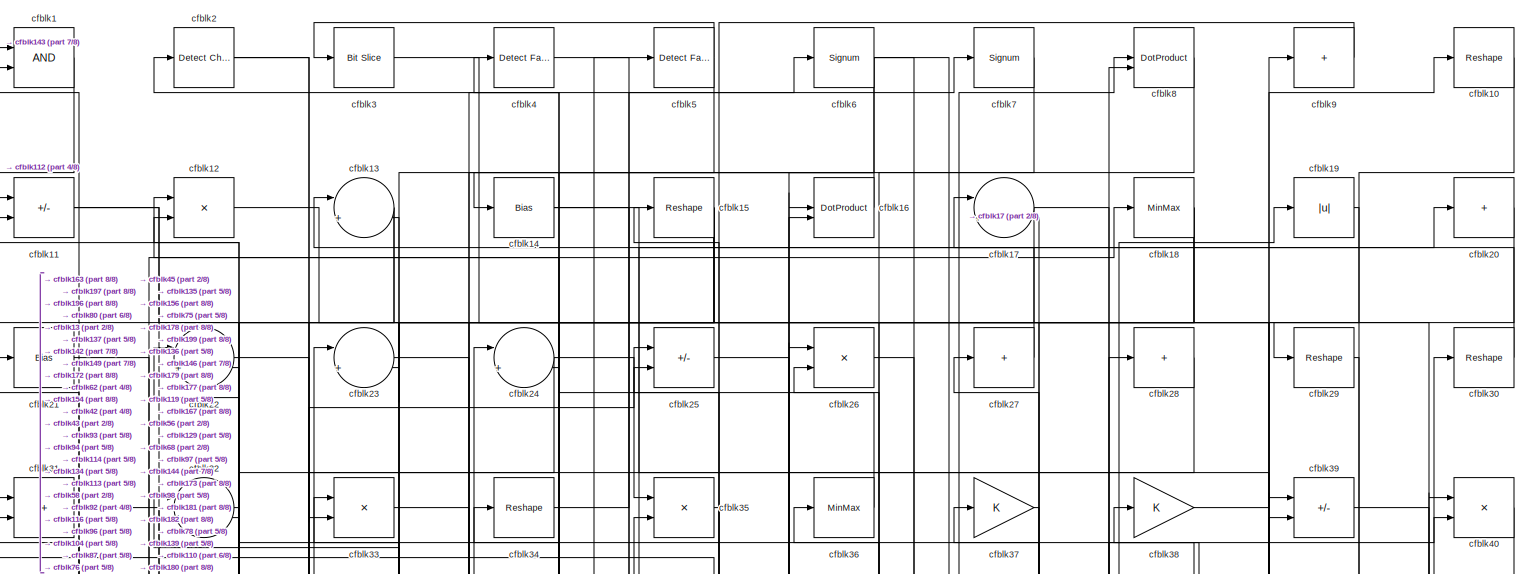
[diagram: root canvas - part 1/8, full width, top band]
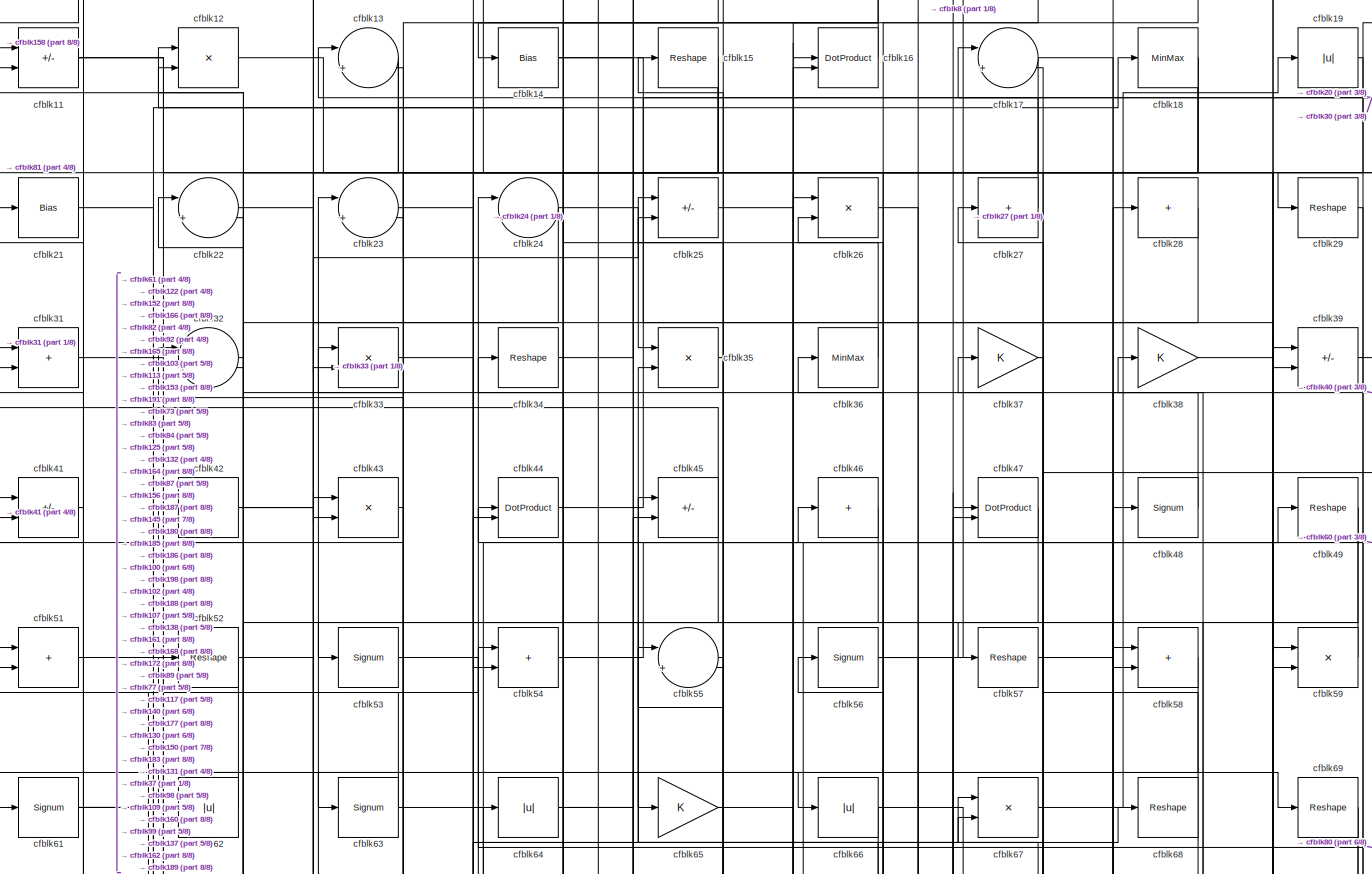
[diagram: root canvas - part 2/8, full width, top band]
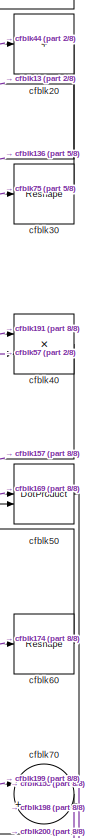
[diagram: root canvas - part 3/8, top right region]
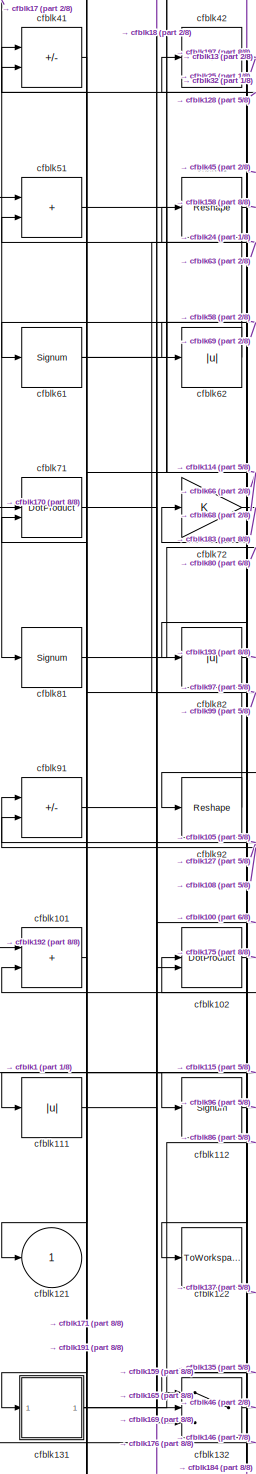
[diagram: root canvas - part 4/8, middle left region]
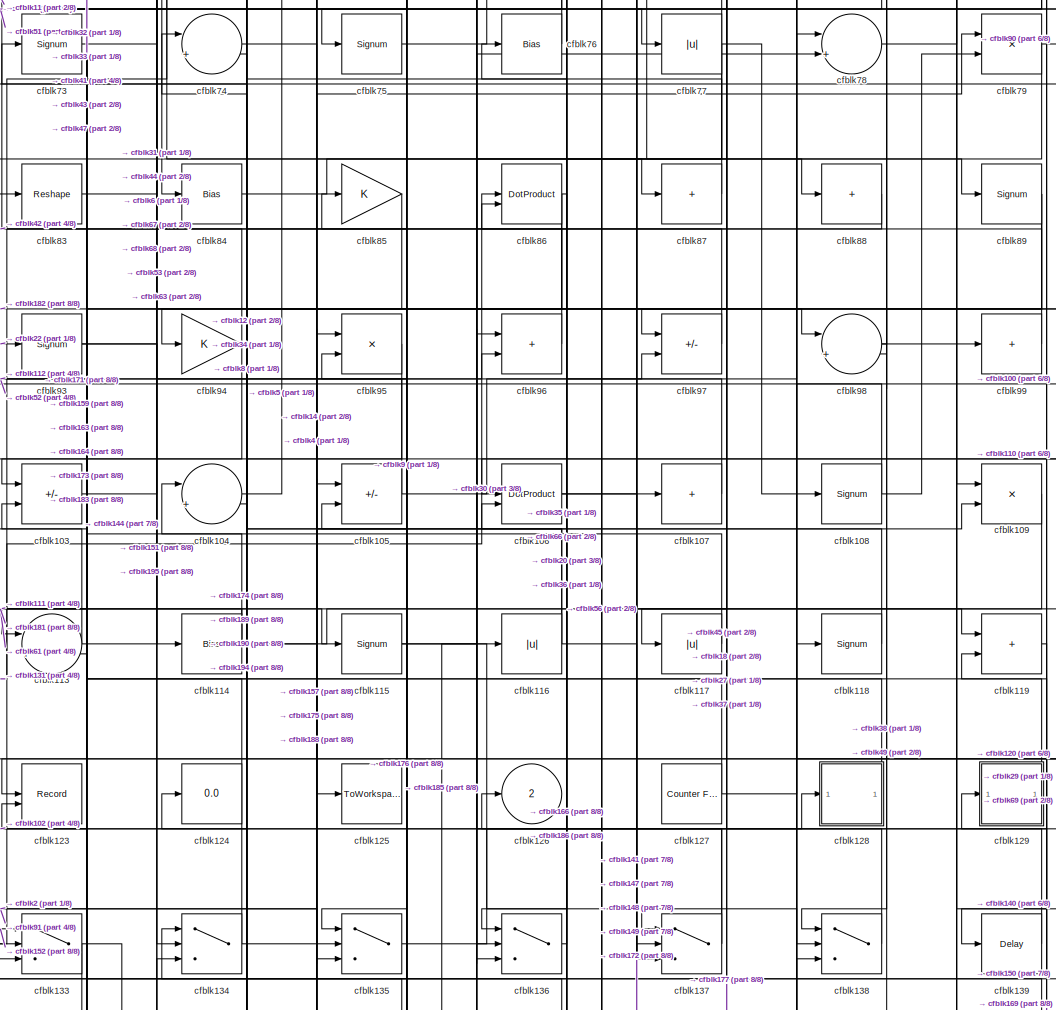
[diagram: root canvas - part 5/8, central region]
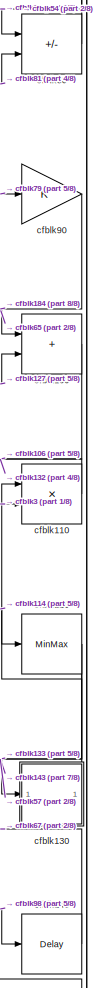
[diagram: root canvas - part 6/8, middle right region]
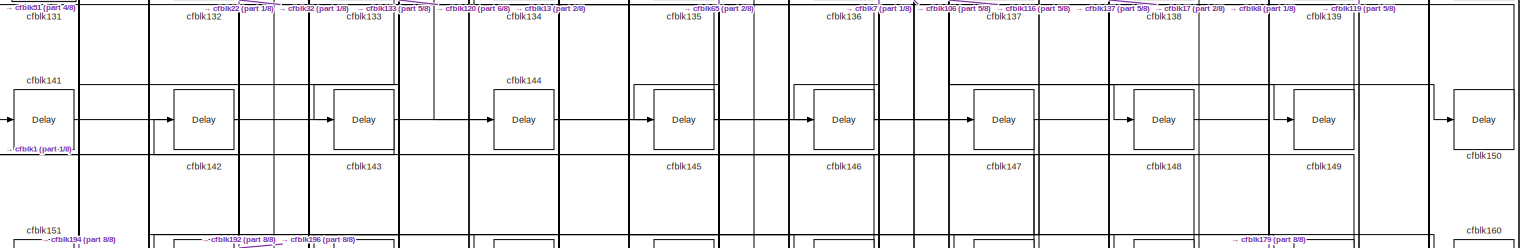
[diagram: root canvas - part 7/8, full width, bottom band]
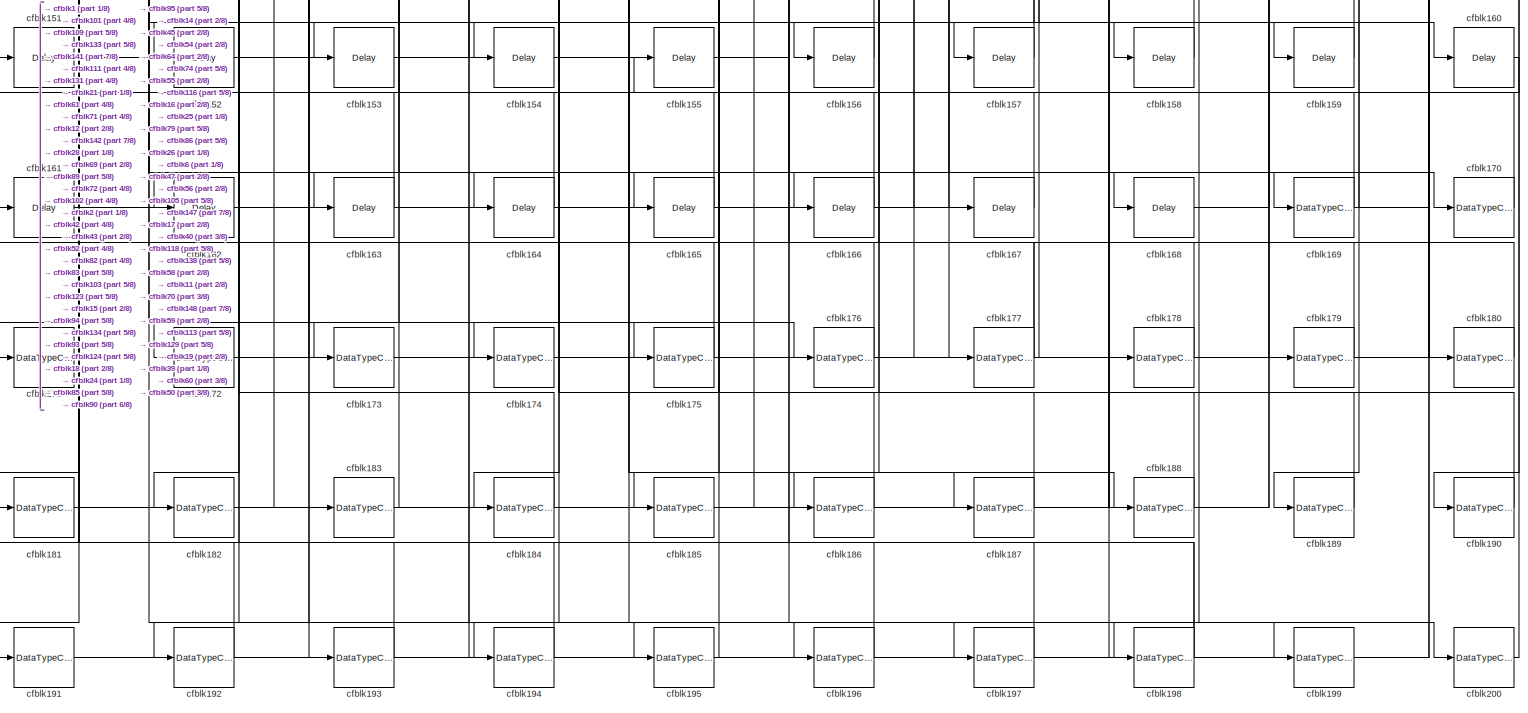
[diagram: root canvas - part 8/8, full width, bottom band]
MODEL slx_245daadd584b
KIND model
CONFIG AbsTol = auto
CONFIG EnableMultiTasking = off
CONFIG FixedStep = auto
CONFIG MaxStep = auto
CONFIG MinStep = auto
CONFIG RelTol = 1e-3
CONFIG SampleTimeConstraint = Unconstrained
CONFIG SolverName = VariableStepAuto
CONFIG StartTime = 0.0
CONFIG StopTime = 10.0
BLOCK [Logic] cfblk1
  AllPortsSameDT = off
  OutDataTypeStr = boolean
BLOCK [Reshape] cfblk10
BLOCK [Sum] cfblk100
  IconShape = rectangular
BLOCK [Sum] cfblk101
  IconShape = rectangular
BLOCK [DotProduct] cfblk102
  OutDataTypeStr = Inherit: Inherit via internal rule
BLOCK [Sum] cfblk103
  IconShape = rectangular
  Inputs = +-
BLOCK [Sum] cfblk104
  Inputs = |++
BLOCK [Sum] cfblk105
  IconShape = rectangular
  Inputs = +-
BLOCK [DotProduct] cfblk106
  OutDataTypeStr = Inherit: Inherit via internal rule
BLOCK [Sum] cfblk107
  IconShape = rectangular
  Inputs = +
BLOCK [Signum] cfblk108
BLOCK [Product] cfblk109
  Inputs = */
  RndMeth = Zero
  SaturateOnIntegerOverflow = on
BLOCK [Sum] cfblk11
  IconShape = rectangular
  Inputs = +-
BLOCK [Product] cfblk110
  Inputs = */
  RndMeth = Zero
  SaturateOnIntegerOverflow = on
BLOCK [Abs] cfblk111
  SaturateOnIntegerOverflow = off
BLOCK [Signum] cfblk112
BLOCK [Sum] cfblk113
  Inputs = |++
BLOCK [Bias] cfblk114
  Bias = 0.0
  SaturateOnIntegerOverflow = off
BLOCK [Signum] cfblk115
BLOCK [Abs] cfblk116
  SaturateOnIntegerOverflow = off
BLOCK [Abs] cfblk117
  SaturateOnIntegerOverflow = off
BLOCK [Signum] cfblk118
BLOCK [Sum] cfblk119
  IconShape = rectangular
BLOCK [Product] cfblk12
  Inputs = */
  RndMeth = Zero
  SaturateOnIntegerOverflow = on
BLOCK [MinMax] cfblk120
BLOCK [Outport] cfblk121
  VectorParamsAs1DForOutWhenUnconnected = off
BLOCK [ToWorkspace] cfblk122
  MaxDataPoints = inf
  SampleTime = -1
  SaveFormat = Timeseries
  VariableName = simout
BLOCK [Record] cfblk123
  CompatibilityTag = XY
  FileSettingsInternal = {"entries":[{"content":{"excelSettings":{"content":{},"type":"Streamout.ExcelSettings"}},"type":"Streamout.FileSettingStorage","uuid":""}],"packageUris":["http:\/\/schema.mathworks.com\/mf0\/streamout_blocks\/R2020a"],"version":"1.0"}
  Layout = [1 1]
  SignalsInternal = {"entries":[{"content":{},"type":"RecordBlkView.InputSignals","uuid":""}],"packageUris":["http:\/\/schema.mathworks.com\/mf0\/streamout_blocks\/R2020a"],"version":"1.0"}
  VisualizationBindings = {"xyplotplugin":{"info":[{"series":[{"bindingParametersList":[{"parameter":"X-Axis","signalID":2749,"signalName":"cfblk89"},{"parameter":"Y-Axis","signalID":2753,"signalName":"cfblk183"}],"seriesID":25889}],"subplotID":1}]}}
  st = -1
BLOCK [Display] cfblk124
  Decimation = 1
BLOCK [ToWorkspace] cfblk125
  MaxDataPoints = inf
  SampleTime = -1
  SaveFormat = Timeseries
  VariableName = simout
BLOCK [Outport] cfblk126
  Port = 2
  VectorParamsAs1DForOutWhenUnconnected = off
BLOCK [Reference] cfblk127  REF=hdlsllib/Sources/Counter
Free-Running
  SourceBlock = hdlsllib/Sources/Counter\nFree-Running
  SourceType = Counter Free-Running
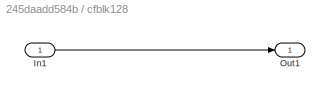
BLOCK [SubSystem] cfblk128
  LibrarySourceBlock = hdlsllib/Ports &\nSubsystems/Subsystem
BLOCK [Inport] cfblk128/In1
BLOCK [Outport] cfblk128/Out1
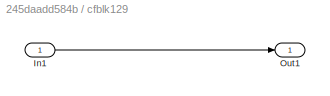
BLOCK [SubSystem] cfblk129
  LibrarySourceBlock = hdlsllib/Ports &\nSubsystems/Subsystem
BLOCK [Inport] cfblk129/In1
BLOCK [Outport] cfblk129/Out1
BLOCK [Sum] cfblk13
  Inputs = |++
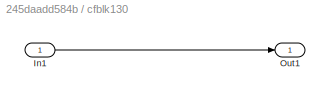
BLOCK [SubSystem] cfblk130
  LibrarySourceBlock = hdlsllib/Ports &\nSubsystems/Subsystem
BLOCK [Inport] cfblk130/In1
BLOCK [Outport] cfblk130/Out1
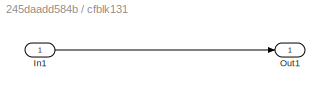
BLOCK [SubSystem] cfblk131
  LibrarySourceBlock = hdlsllib/Ports &\nSubsystems/Subsystem
BLOCK [Inport] cfblk131/In1
BLOCK [Outport] cfblk131/Out1
BLOCK [Switch] cfblk132
  InputSameDT = off
  SaturateOnIntegerOverflow = off
BLOCK [Switch] cfblk133
  InputSameDT = off
  SaturateOnIntegerOverflow = off
BLOCK [Switch] cfblk134
  InputSameDT = off
  SaturateOnIntegerOverflow = off
BLOCK [Switch] cfblk135
  InputSameDT = off
  SaturateOnIntegerOverflow = off
BLOCK [Switch] cfblk136
  InputSameDT = off
  SaturateOnIntegerOverflow = off
BLOCK [Switch] cfblk137
  InputSameDT = off
  SaturateOnIntegerOverflow = off
BLOCK [Switch] cfblk138
  InputSameDT = off
  SaturateOnIntegerOverflow = off
BLOCK [Delay] cfblk139
  InputPortMap = u0
  SampleTime = 1
BLOCK [Bias] cfblk14
  Bias = 0.0
  SaturateOnIntegerOverflow = off
BLOCK [Delay] cfblk140
  InputPortMap = u0
  SampleTime = 1
BLOCK [Delay] cfblk141
  InputPortMap = u0
  SampleTime = 1
BLOCK [Delay] cfblk142
  InputPortMap = u0
  SampleTime = 1
BLOCK [Delay] cfblk143
  InputPortMap = u0
  SampleTime = 1
BLOCK [Delay] cfblk144
  InputPortMap = u0
  SampleTime = 1
BLOCK [Delay] cfblk145
  InputPortMap = u0
  SampleTime = 1
BLOCK [Delay] cfblk146
  InputPortMap = u0
  SampleTime = 1
BLOCK [Delay] cfblk147
  InputPortMap = u0
  SampleTime = 1
BLOCK [Delay] cfblk148
  InputPortMap = u0
  SampleTime = 1
BLOCK [Delay] cfblk149
  InputPortMap = u0
  SampleTime = 1
BLOCK [Reshape] cfblk15
BLOCK [Delay] cfblk150
  InputPortMap = u0
  SampleTime = 1
BLOCK [Delay] cfblk151
  InputPortMap = u0
  SampleTime = 1
BLOCK [Delay] cfblk152
  InputPortMap = u0
  SampleTime = 1
BLOCK [Delay] cfblk153
  InputPortMap = u0
  SampleTime = 1
BLOCK [Delay] cfblk154
  InputPortMap = u0
  SampleTime = 1
BLOCK [Delay] cfblk155
  InputPortMap = u0
  SampleTime = 1
BLOCK [Delay] cfblk156
  InputPortMap = u0
  SampleTime = 1
BLOCK [Delay] cfblk157
  InputPortMap = u0
  SampleTime = 1
BLOCK [Delay] cfblk158
  InputPortMap = u0
  SampleTime = 1
BLOCK [Delay] cfblk159
  InputPortMap = u0
  SampleTime = 1
BLOCK [DotProduct] cfblk16
  OutDataTypeStr = Inherit: Inherit via internal rule
BLOCK [Delay] cfblk160
  InputPortMap = u0
  SampleTime = 1
BLOCK [Delay] cfblk161
  InputPortMap = u0
  SampleTime = 1
BLOCK [Delay] cfblk162
  InputPortMap = u0
  SampleTime = 1
BLOCK [Delay] cfblk163
  InputPortMap = u0
  SampleTime = 1
BLOCK [Delay] cfblk164
  InputPortMap = u0
  SampleTime = 1
BLOCK [Delay] cfblk165
  InputPortMap = u0
  SampleTime = 1
BLOCK [Delay] cfblk166
  InputPortMap = u0
  SampleTime = 1
BLOCK [Delay] cfblk167
  InputPortMap = u0
  SampleTime = 1
BLOCK [Delay] cfblk168
  InputPortMap = u0
  SampleTime = 1
BLOCK [DataTypeConversion] cfblk169
  RndMeth = Floor
  SaturateOnIntegerOverflow = off
BLOCK [Sum] cfblk17
  Inputs = |++
BLOCK [DataTypeConversion] cfblk170
  OutDataTypeStr = uint8
  RndMeth = Floor
  SaturateOnIntegerOverflow = off
BLOCK [DataTypeConversion] cfblk171
  OutDataTypeStr = uint8
  RndMeth = Floor
  SaturateOnIntegerOverflow = off
BLOCK [DataTypeConversion] cfblk172
  RndMeth = Floor
  SaturateOnIntegerOverflow = off
BLOCK [DataTypeConversion] cfblk173
  OutDataTypeStr = uint8
  RndMeth = Floor
  SaturateOnIntegerOverflow = off
BLOCK [DataTypeConversion] cfblk174
  RndMeth = Floor
  SaturateOnIntegerOverflow = off
BLOCK [DataTypeConversion] cfblk175
  OutDataTypeStr = uint8
  RndMeth = Floor
  SaturateOnIntegerOverflow = off
BLOCK [DataTypeConversion] cfblk176
  OutDataTypeStr = uint8
  RndMeth = Floor
  SaturateOnIntegerOverflow = off
BLOCK [DataTypeConversion] cfblk177
  RndMeth = Floor
  SaturateOnIntegerOverflow = off
BLOCK [DataTypeConversion] cfblk178
  OutDataTypeStr = uint8
  RndMeth = Floor
  SaturateOnIntegerOverflow = off
BLOCK [DataTypeConversion] cfblk179
  OutDataTypeStr = uint8
  RndMeth = Floor
  SaturateOnIntegerOverflow = off
BLOCK [MinMax] cfblk18
BLOCK [DataTypeConversion] cfblk180
  OutDataTypeStr = uint8
  RndMeth = Floor
  SaturateOnIntegerOverflow = off
BLOCK [DataTypeConversion] cfblk181
  OutDataTypeStr = uint8
  RndMeth = Floor
  SaturateOnIntegerOverflow = off
BLOCK [DataTypeConversion] cfblk182
  OutDataTypeStr = uint8
  RndMeth = Floor
  SaturateOnIntegerOverflow = off
BLOCK [DataTypeConversion] cfblk183
  RndMeth = Floor
  SaturateOnIntegerOverflow = off
BLOCK [DataTypeConversion] cfblk184
  OutDataTypeStr = uint8
  RndMeth = Floor
  SaturateOnIntegerOverflow = off
BLOCK [DataTypeConversion] cfblk185
  RndMeth = Floor
  SaturateOnIntegerOverflow = off
BLOCK [DataTypeConversion] cfblk186
  OutDataTypeStr = uint8
  RndMeth = Floor
  SaturateOnIntegerOverflow = off
BLOCK [DataTypeConversion] cfblk187
  OutDataTypeStr = uint8
  RndMeth = Floor
  SaturateOnIntegerOverflow = off
BLOCK [DataTypeConversion] cfblk188
  OutDataTypeStr = uint8
  RndMeth = Floor
  SaturateOnIntegerOverflow = off
BLOCK [DataTypeConversion] cfblk189
  OutDataTypeStr = uint8
  RndMeth = Floor
  SaturateOnIntegerOverflow = off
BLOCK [Abs] cfblk19
  SaturateOnIntegerOverflow = off
BLOCK [DataTypeConversion] cfblk190
  OutDataTypeStr = uint8
  RndMeth = Floor
  SaturateOnIntegerOverflow = off
BLOCK [DataTypeConversion] cfblk191
  RndMeth = Floor
  SaturateOnIntegerOverflow = off
BLOCK [DataTypeConversion] cfblk192
  OutDataTypeStr = uint8
  RndMeth = Floor
  SaturateOnIntegerOverflow = off
BLOCK [DataTypeConversion] cfblk193
  OutDataTypeStr = uint8
  RndMeth = Floor
  SaturateOnIntegerOverflow = off
BLOCK [DataTypeConversion] cfblk194
  OutDataTypeStr = uint8
  RndMeth = Floor
  SaturateOnIntegerOverflow = off
BLOCK [DataTypeConversion] cfblk195
  OutDataTypeStr = uint8
  RndMeth = Floor
  SaturateOnIntegerOverflow = off
BLOCK [DataTypeConversion] cfblk196
  OutDataTypeStr = uint8
  RndMeth = Floor
  SaturateOnIntegerOverflow = off
BLOCK [DataTypeConversion] cfblk197
  OutDataTypeStr = uint8
  RndMeth = Floor
  SaturateOnIntegerOverflow = off
BLOCK [DataTypeConversion] cfblk198
  RndMeth = Floor
  SaturateOnIntegerOverflow = off
BLOCK [DataTypeConversion] cfblk199
  OutDataTypeStr = uint8
  RndMeth = Floor
  SaturateOnIntegerOverflow = off
BLOCK [Reference] cfblk2  REF=simulink/Logic and Bit
Operations/Detect
Change
  LibrarySourceBlock = hdlsllib/Logic and Bit\nOperations/Detect\nChange
  SourceBlock = simulink/Logic and Bit\nOperations/Detect\nChange
  SourceType = Detect Change
BLOCK [Sum] cfblk20
  IconShape = rectangular
  Inputs = +
BLOCK [DataTypeConversion] cfblk200
  OutDataTypeStr = uint8
  RndMeth = Floor
  SaturateOnIntegerOverflow = off
BLOCK [Bias] cfblk21
  Bias = 0.0
  SaturateOnIntegerOverflow = off
BLOCK [Sum] cfblk22
  Inputs = |++
BLOCK [Sum] cfblk23
  Inputs = |++
BLOCK [Sum] cfblk24
  Inputs = |++
BLOCK [Sum] cfblk25
  IconShape = rectangular
  Inputs = +-
BLOCK [Product] cfblk26
  Inputs = */
  RndMeth = Zero
  SaturateOnIntegerOverflow = on
BLOCK [Sum] cfblk27
  IconShape = rectangular
  Inputs = +
BLOCK [Sum] cfblk28
  IconShape = rectangular
  Inputs = +
BLOCK [Reshape] cfblk29
BLOCK [Reference] cfblk3  REF=hdlsllib/Logic and Bit
Operations/Bit Slice
  SourceBlock = hdlsllib/Logic and Bit\nOperations/Bit Slice
  SourceType = Bit Slice
BLOCK [Reshape] cfblk30
BLOCK [Sum] cfblk31
  IconShape = rectangular
BLOCK [Sum] cfblk32
  Inputs = |++
BLOCK [Product] cfblk33
  Inputs = */
  RndMeth = Zero
  SaturateOnIntegerOverflow = on
BLOCK [Reshape] cfblk34
BLOCK [Product] cfblk35
  Inputs = */
  RndMeth = Zero
  SaturateOnIntegerOverflow = on
BLOCK [MinMax] cfblk36
BLOCK [Gain] cfblk37
BLOCK [Gain] cfblk38
BLOCK [Sum] cfblk39
  IconShape = rectangular
  Inputs = +-
BLOCK [Reference] cfblk4  REF=hdlsllib/Logic and Bit
Operations/Detect Fall
Nonpositive
  SourceBlock = hdlsllib/Logic and Bit\nOperations/Detect Fall\nNonpositive
  SourceType = Detect Fall Nonpositive
BLOCK [Product] cfblk40
  Inputs = */
  RndMeth = Zero
  SaturateOnIntegerOverflow = on
BLOCK [Sum] cfblk41
  IconShape = rectangular
  Inputs = +-
BLOCK [Sum] cfblk42
  IconShape = rectangular
  Inputs = +
BLOCK [Product] cfblk43
  Inputs = */
  RndMeth = Zero
  SaturateOnIntegerOverflow = on
BLOCK [DotProduct] cfblk44
  OutDataTypeStr = Inherit: Inherit via internal rule
BLOCK [Sum] cfblk45
  IconShape = rectangular
  Inputs = +-
BLOCK [Sum] cfblk46
  IconShape = rectangular
  Inputs = +
BLOCK [DotProduct] cfblk47
  OutDataTypeStr = Inherit: Inherit via internal rule
BLOCK [Signum] cfblk48
BLOCK [Reshape] cfblk49
BLOCK [Reference] cfblk5  REF=hdlsllib/Logic and Bit
Operations/Detect Fall
Negative
  SourceBlock = hdlsllib/Logic and Bit\nOperations/Detect Fall\nNegative
  SourceType = Detect Fall Negative
BLOCK [DotProduct] cfblk50
  OutDataTypeStr = Inherit: Inherit via internal rule
BLOCK [Sum] cfblk51
  IconShape = rectangular
BLOCK [Reshape] cfblk52
BLOCK [Signum] cfblk53
BLOCK [Sum] cfblk54
  IconShape = rectangular
BLOCK [Sum] cfblk55
  Inputs = |++
BLOCK [Signum] cfblk56
BLOCK [Reshape] cfblk57
BLOCK [Sum] cfblk58
  IconShape = rectangular
BLOCK [Product] cfblk59
  Inputs = */
  RndMeth = Zero
  SaturateOnIntegerOverflow = on
BLOCK [Signum] cfblk6
BLOCK [Reshape] cfblk60
BLOCK [Signum] cfblk61
BLOCK [Abs] cfblk62
  SaturateOnIntegerOverflow = off
BLOCK [Signum] cfblk63
BLOCK [Abs] cfblk64
  SaturateOnIntegerOverflow = off
BLOCK [Gain] cfblk65
BLOCK [Abs] cfblk66
  SaturateOnIntegerOverflow = off
BLOCK [Product] cfblk67
  Inputs = */
  RndMeth = Zero
  SaturateOnIntegerOverflow = on
BLOCK [Reshape] cfblk68
BLOCK [Reshape] cfblk69
BLOCK [Signum] cfblk7
BLOCK [Sum] cfblk70
  Inputs = |++
BLOCK [DotProduct] cfblk71
  OutDataTypeStr = Inherit: Inherit via internal rule
BLOCK [Gain] cfblk72
BLOCK [Signum] cfblk73
BLOCK [Sum] cfblk74
  Inputs = |++
BLOCK [Signum] cfblk75
BLOCK [Bias] cfblk76
  Bias = 0.0
  SaturateOnIntegerOverflow = off
BLOCK [Abs] cfblk77
  SaturateOnIntegerOverflow = off
BLOCK [Sum] cfblk78
  Inputs = |++
BLOCK [Product] cfblk79
  Inputs = */
  RndMeth = Zero
  SaturateOnIntegerOverflow = on
BLOCK [DotProduct] cfblk8
  OutDataTypeStr = Inherit: Inherit via internal rule
BLOCK [Sum] cfblk80
  IconShape = rectangular
  Inputs = +-
BLOCK [Signum] cfblk81
BLOCK [Abs] cfblk82
  SaturateOnIntegerOverflow = off
BLOCK [Reshape] cfblk83
BLOCK [Bias] cfblk84
  Bias = 0.0
  SaturateOnIntegerOverflow = off
BLOCK [Gain] cfblk85
BLOCK [DotProduct] cfblk86
  OutDataTypeStr = Inherit: Inherit via internal rule
BLOCK [Sum] cfblk87
  IconShape = rectangular
  Inputs = +
BLOCK [Sum] cfblk88
  IconShape = rectangular
  Inputs = +
BLOCK [Signum] cfblk89
BLOCK [Sum] cfblk9
  IconShape = rectangular
  Inputs = +
BLOCK [Gain] cfblk90
BLOCK [Sum] cfblk91
  IconShape = rectangular
  Inputs = +-
BLOCK [Reshape] cfblk92
BLOCK [Signum] cfblk93
BLOCK [Gain] cfblk94
BLOCK [Product] cfblk95
  Inputs = */
  RndMeth = Zero
  SaturateOnIntegerOverflow = on
BLOCK [Sum] cfblk96
  IconShape = rectangular
BLOCK [Sum] cfblk97
  IconShape = rectangular
  Inputs = +-
BLOCK [Sum] cfblk98
  Inputs = |++
BLOCK [Sum] cfblk99
  IconShape = rectangular
  Inputs = +
LINE cfblk100:1 -> cfblk132:2
LINE cfblk101:1 -> cfblk191:1
LINE cfblk102:1 -> cfblk175:1
LINE cfblk103:1 -> cfblk67:1
LINE cfblk104:1 -> cfblk5:1
NET cfblk105:1 -> cfblk52:1, cfblk78:1
NET cfblk106:1 -> cfblk147:1, cfblk148:1
LINE cfblk107:1 -> cfblk76:1
NET cfblk108:1 -> cfblk79:2, cfblk91:2
LINE cfblk109:1 -> cfblk181:1
LINE cfblk10:1 -> cfblk29:1
LINE cfblk110:1 -> cfblk106:1
LINE cfblk111:1 -> cfblk159:1
LINE cfblk112:1 -> cfblk96:2
NET cfblk113:1 -> cfblk31:2, cfblk6:1
NET cfblk114:1 -> cfblk109:2, cfblk111:1, cfblk120:1, cfblk33:1
NET cfblk115:1 -> cfblk137:1, cfblk78:2
NET cfblk116:1 -> cfblk106:2, cfblk149:1, cfblk34:1
LINE cfblk117:1 -> cfblk104:1
LINE cfblk118:1 -> cfblk73:1
LINE cfblk119:1 -> cfblk134:1
NET cfblk11:1 -> cfblk109:1, cfblk77:1
NET cfblk120:1 -> cfblk133:3, cfblk143:1
NET cfblk127:1 -> cfblk100:2, cfblk91:1
LINE cfblk128/In1:1 -> cfblk128/Out1:1
LINE cfblk128:1 -> cfblk41:1
LINE cfblk129/In1:1 -> cfblk129/Out1:1
LINE cfblk129:1 -> cfblk27:1
LINE cfblk12:1 -> cfblk59:1
LINE cfblk130/In1:1 -> cfblk130/Out1:1
LINE cfblk130:1 -> cfblk110:1
LINE cfblk131/In1:1 -> cfblk131/Out1:1
NET cfblk131:1 -> cfblk165:1, cfblk86:1
LINE cfblk132:1 -> cfblk46:1
NET cfblk133:1 -> cfblk144:1, cfblk171:1
NET cfblk134:1 -> cfblk32:1, cfblk79:1
LINE cfblk135:1 -> cfblk128:1
LINE cfblk136:1 -> cfblk36:1
NET cfblk137:1 -> cfblk102:1, cfblk22:1
LINE cfblk138:1 -> cfblk126:1
LINE cfblk139:1 -> cfblk96:1
NET cfblk13:1 -> cfblk33:2, cfblk82:1
LINE cfblk140:1 -> cfblk67:2
LINE cfblk141:1 -> cfblk137:2
LINE cfblk142:1 -> cfblk22:2
LINE cfblk143:1 -> cfblk1:1
LINE cfblk144:1 -> cfblk8:2
LINE cfblk145:1 -> cfblk13:2
LINE cfblk146:1 -> cfblk51:1
LINE cfblk147:1 -> cfblk192:1
LINE cfblk148:1 -> cfblk179:1
LINE cfblk149:1 -> cfblk32:2
NET cfblk14:1 -> cfblk160:1, cfblk99:1
LINE cfblk150:1 -> cfblk119:2
LINE cfblk151:1 -> cfblk134:3
LINE cfblk152:1 -> cfblk133:1
LINE cfblk153:1 -> cfblk16:2
LINE cfblk154:1 -> cfblk200:1
LINE cfblk155:1 -> cfblk170:1
LINE cfblk156:1 -> cfblk25:2
LINE cfblk157:1 -> cfblk105:1
LINE cfblk158:1 -> cfblk11:1
LINE cfblk159:1 -> cfblk113:2
NET cfblk15:1 -> cfblk152:1, cfblk153:1, cfblk54:2, cfblk63:1
LINE cfblk160:1 -> cfblk190:1
LINE cfblk161:1 -> cfblk47:2
LINE cfblk162:1 -> cfblk45:2
LINE cfblk163:1 -> cfblk1:2
LINE cfblk164:1 -> cfblk103:2
LINE cfblk165:1 -> cfblk43:1
LINE cfblk166:1 -> cfblk12:2
LINE cfblk167:1 -> cfblk24:2
LINE cfblk168:1 -> cfblk59:2
NET cfblk169:1 -> cfblk105:2, cfblk129:1, cfblk50:1
LINE cfblk16:1 -> cfblk14:1
LINE cfblk170:1 -> cfblk71:1
LINE cfblk171:1 -> cfblk71:2
NET cfblk172:1 -> cfblk47:1, cfblk83:1
LINE cfblk173:1 -> cfblk28:1
NET cfblk174:1 -> cfblk50:2, cfblk60:1
LINE cfblk175:1 -> cfblk95:1
LINE cfblk176:1 -> cfblk95:2
NET cfblk177:1 -> cfblk124:1, cfblk151:1, cfblk17:2
LINE cfblk178:1 -> cfblk26:1
LINE cfblk179:1 -> cfblk26:2
NET cfblk17:1 -> cfblk150:1, cfblk81:1
LINE cfblk180:1 -> cfblk15:1
LINE cfblk181:1 -> cfblk39:1
LINE cfblk182:1 -> cfblk39:2
NET cfblk183:1 -> cfblk118:1, cfblk123:2, cfblk58:1
LINE cfblk184:1 -> cfblk72:1
NET cfblk185:1 -> cfblk116:1, cfblk138:3
LINE cfblk186:1 -> cfblk55:1
LINE cfblk187:1 -> cfblk55:2
LINE cfblk188:1 -> cfblk56:1
LINE cfblk189:1 -> cfblk74:1
NET cfblk18:1 -> cfblk117:1, cfblk164:1, cfblk53:1
LINE cfblk190:1 -> cfblk74:2
NET cfblk191:1 -> cfblk178:1, cfblk40:1, cfblk64:1
LINE cfblk192:1 -> cfblk101:1
LINE cfblk193:1 -> cfblk101:2
LINE cfblk194:1 -> cfblk141:1
LINE cfblk195:1 -> cfblk85:1
LINE cfblk196:1 -> cfblk142:1
LINE cfblk197:1 -> cfblk21:1
NET cfblk198:1 -> cfblk161:1, cfblk16:1
LINE cfblk199:1 -> cfblk70:1
LINE cfblk19:1 -> cfblk189:1
LINE cfblk1:1 -> cfblk112:1
LINE cfblk200:1 -> cfblk70:2
LINE cfblk20:1 -> cfblk136:1
LINE cfblk21:1 -> cfblk196:1
LINE cfblk22:1 -> cfblk93:1
LINE cfblk23:1 -> cfblk98:1
NET cfblk24:1 -> cfblk35:1, cfblk43:2
LINE cfblk25:1 -> cfblk199:1
LINE cfblk26:1 -> cfblk177:1
LINE cfblk27:1 -> cfblk17:1
LINE cfblk28:1 -> cfblk172:1
LINE cfblk29:1 -> cfblk139:1
NET cfblk2:1 -> cfblk135:3, cfblk154:1
LINE cfblk30:1 -> cfblk13:1
LINE cfblk31:1 -> cfblk80:1
LINE cfblk32:1 -> cfblk62:1
LINE cfblk33:1 -> cfblk58:2
LINE cfblk34:1 -> cfblk7:1
LINE cfblk35:1 -> cfblk135:1
LINE cfblk36:1 -> cfblk2:1
LINE cfblk37:1 -> cfblk97:1
LINE cfblk38:1 -> cfblk10:1
LINE cfblk39:1 -> cfblk180:1
LINE cfblk3:1 -> cfblk110:2
LINE cfblk40:1 -> cfblk157:1
LINE cfblk41:1 -> cfblk121:1
NET cfblk42:1 -> cfblk197:1, cfblk25:1
LINE cfblk43:1 -> cfblk103:1
LINE cfblk44:1 -> cfblk20:1
NET cfblk45:1 -> cfblk31:1, cfblk92:1
LINE cfblk46:1 -> cfblk122:1
LINE cfblk47:1 -> cfblk113:1
LINE cfblk48:1 -> cfblk11:2
NET cfblk49:1 -> cfblk65:1, cfblk98:2
LINE cfblk4:1 -> cfblk87:1
LINE cfblk50:1 -> cfblk155:1
LINE cfblk51:1 -> cfblk114:1
NET cfblk52:1 -> cfblk132:3, cfblk158:1
LINE cfblk53:1 -> cfblk84:1
NET cfblk54:1 -> cfblk187:1, cfblk49:1
LINE cfblk55:1 -> cfblk185:1
NET cfblk56:1 -> cfblk107:1, cfblk138:2, cfblk168:1, cfblk8:1
NET cfblk57:1 -> cfblk130:1, cfblk40:2, cfblk48:1
LINE cfblk58:1 -> cfblk132:1
LINE cfblk59:1 -> cfblk57:1
NET cfblk5:1 -> cfblk23:2, cfblk3:1
LINE cfblk60:1 -> cfblk44:1
NET cfblk61:1 -> cfblk115:1, cfblk176:1, cfblk18:1, cfblk69:1
LINE cfblk62:1 -> cfblk61:1
NET cfblk63:1 -> cfblk125:1, cfblk41:2
NET cfblk64:1 -> cfblk156:1, cfblk66:1
NET cfblk65:1 -> cfblk100:1, cfblk145:1
NET cfblk66:1 -> cfblk102:2, cfblk89:1
LINE cfblk67:1 -> cfblk19:1
NET cfblk68:1 -> cfblk131:1, cfblk37:1
NET cfblk69:1 -> cfblk137:3, cfblk162:1
NET cfblk6:1 -> cfblk119:1, cfblk134:2, cfblk136:2, cfblk167:1
LINE cfblk70:1 -> cfblk198:1
LINE cfblk71:1 -> cfblk169:1
LINE cfblk72:1 -> cfblk183:1
LINE cfblk73:1 -> cfblk68:1
LINE cfblk74:1 -> cfblk188:1
LINE cfblk75:1 -> cfblk30:1
LINE cfblk76:1 -> cfblk35:2
NET cfblk77:1 -> cfblk108:1, cfblk133:2, cfblk136:3, cfblk45:1
LINE cfblk78:1 -> cfblk9:1
NET cfblk79:1 -> cfblk166:1, cfblk90:1
LINE cfblk7:1 -> cfblk146:1
LINE cfblk80:1 -> cfblk54:1
LINE cfblk81:1 -> cfblk80:2
LINE cfblk82:1 -> cfblk193:1
LINE cfblk83:1 -> cfblk44:2
LINE cfblk84:1 -> cfblk88:1
LINE cfblk85:1 -> cfblk194:1
NET cfblk86:1 -> cfblk104:2, cfblk163:1, cfblk186:1
LINE cfblk87:1 -> cfblk12:1
LINE cfblk88:1 -> cfblk86:2
NET cfblk89:1 -> cfblk123:1, cfblk138:1, cfblk182:1
LINE cfblk8:1 -> cfblk94:1
LINE cfblk90:1 -> cfblk184:1
LINE cfblk91:1 -> cfblk135:2
LINE cfblk92:1 -> cfblk24:1
NET cfblk93:1 -> cfblk195:1, cfblk97:2
NET cfblk94:1 -> cfblk173:1, cfblk23:1
LINE cfblk95:1 -> cfblk174:1
LINE cfblk96:1 -> cfblk4:1
LINE cfblk97:1 -> cfblk42:1
NET cfblk98:1 -> cfblk140:1, cfblk38:1
LINE cfblk99:1 -> cfblk51:2
LINE cfblk9:1 -> cfblk75:1
note: NET lines group one-source signal fan-out (src -> all destinations, sorted); 1:1 wires keep LINE
